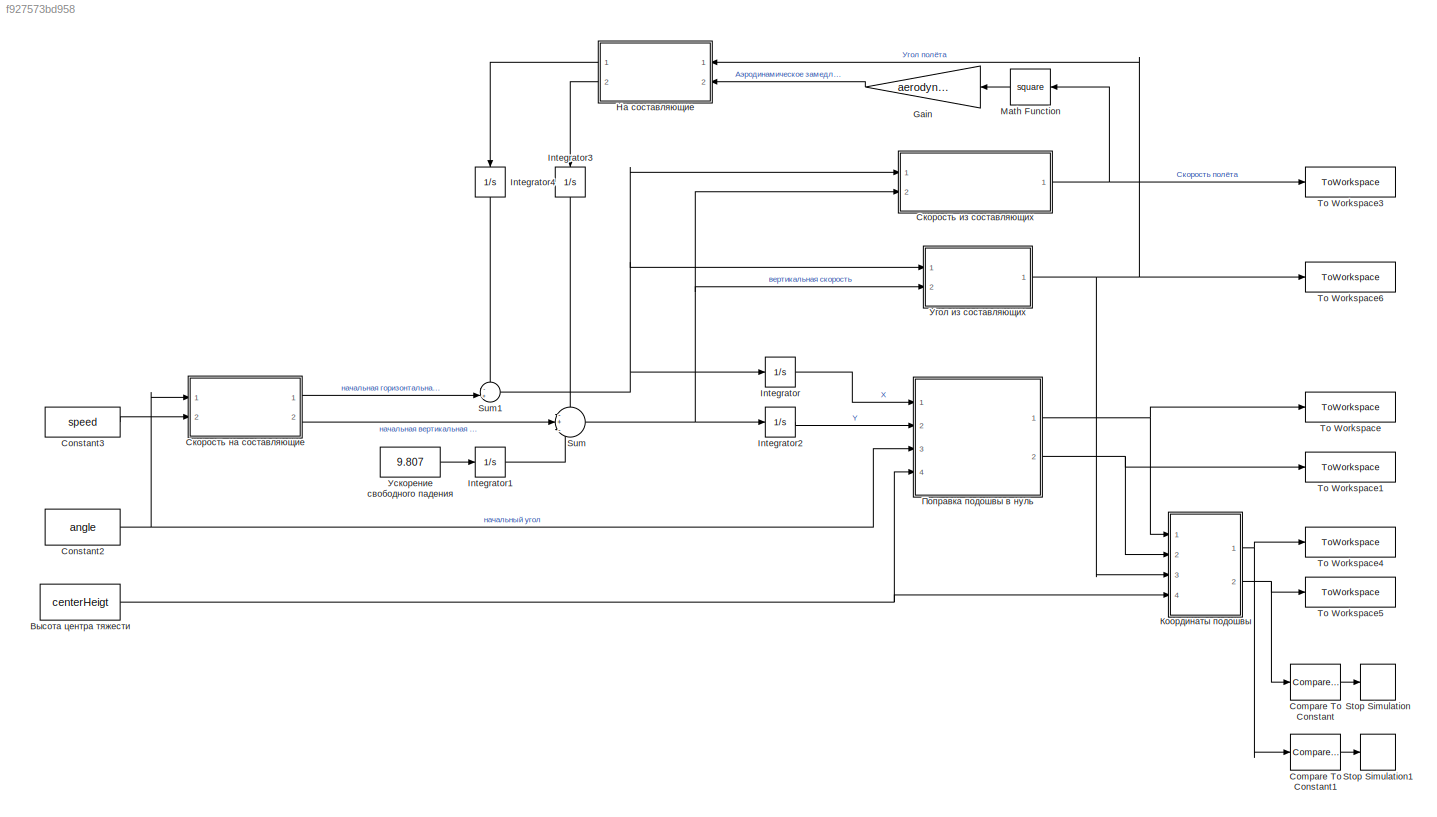
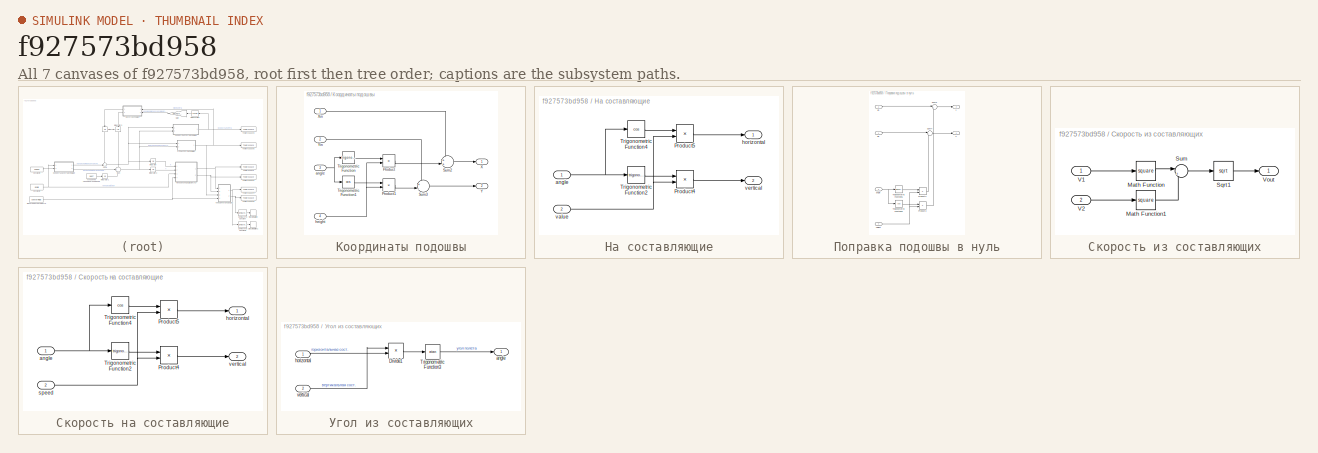
[diagram: thumbnail index - all 7 canvases of the model, root first then tree order]
MODEL slx_f927573bd958
KIND model
CONFIG AbsTol = auto
CONFIG EnableMultiTasking = off
CONFIG FixedStep = 0.01
CONFIG MaxStep = auto
CONFIG MinStep = auto
CONFIG RelTol = 1e-3
CONFIG SampleTimeConstraint = Unconstrained
CONFIG Solver = FixedStepAuto
CONFIG SolverName = FixedStepAuto
CONFIG StartTime = 0.0
CONFIG StopTime = 100.0
BLOCK [Reference] Compare To Constant  REF=simulink/Logic and Bit
Operations/Compare
To Constant
  Ports = [1, 1]
  SourceBlock = simulink/Logic and Bit\nOperations/Compare\nTo Constant
  SourceProductBaseCode = SL
  SourceProductName = Simulink
  SourceType = Compare To Constant
BLOCK [Reference] Compare To Constant1  REF=simulink/Logic and Bit
Operations/Compare
To Constant
  Ports = [1, 1]
  SourceBlock = simulink/Logic and Bit\nOperations/Compare\nTo Constant
  SourceProductBaseCode = SL
  SourceProductName = Simulink
  SourceType = Compare To Constant
BLOCK [Constant] Constant2
  Value = angle
BLOCK [Constant] Constant3
  Value = speed
BLOCK [Gain] Gain
  Gain = aerodynamic
  OutDataTypeStr = Inherit: Inherit via internal rule
  ParamDataTypeStr = Inherit: Inherit via internal rule
  SaturateOnIntegerOverflow = off
BLOCK [Integrator] Integrator
  Ports = [1, 1]
BLOCK [Integrator] Integrator1
  Ports = [1, 1]
BLOCK [Integrator] Integrator2
  Ports = [1, 1]
BLOCK [Integrator] Integrator3
  Ports = [1, 1]
BLOCK [Integrator] Integrator4
  Ports = [1, 1]
BLOCK [Math] Math Function
  Operator = square
  Ports = [1, 1]
  SignedPower = off
BLOCK [Stop] Stop Simulation
BLOCK [Stop] Stop Simulation1
BLOCK [Sum] Sum
  IconShape = round
  InputSameDT = off
  Inputs = -+-
  OutDataTypeStr = Inherit: Inherit via internal rule
  Ports = [3, 1]
  SaturateOnIntegerOverflow = off
BLOCK [Sum] Sum1
  IconShape = round
  InputSameDT = off
  Inputs = -+|
  OutDataTypeStr = Inherit: Inherit via internal rule
  Ports = [2, 1]
  SaturateOnIntegerOverflow = off
BLOCK [ToWorkspace] To Workspace
  FixptAsFi = on
  MaxDataPoints = inf
  Ports = [1]
  SampleTime = -1
  SaveFormat = Timeseries
  VariableName = X
BLOCK [ToWorkspace] To Workspace1
  FixptAsFi = on
  MaxDataPoints = inf
  Ports = [1]
  SampleTime = -1
  SaveFormat = Timeseries
  VariableName = Y
BLOCK [ToWorkspace] To Workspace3
  FixptAsFi = on
  MaxDataPoints = inf
  Ports = [1]
  SampleTime = -1
  SaveFormat = Timeseries
  VariableName = speed
BLOCK [ToWorkspace] To Workspace4
  FixptAsFi = on
  MaxDataPoints = inf
  Ports = [1]
  SampleTime = -1
  SaveFormat = Timeseries
  VariableName = realX
BLOCK [ToWorkspace] To Workspace5
  FixptAsFi = on
  MaxDataPoints = inf
  Ports = [1]
  SampleTime = -1
  SaveFormat = Timeseries
  VariableName = realY
BLOCK [ToWorkspace] To Workspace6
  FixptAsFi = on
  MaxDataPoints = inf
  Ports = [1]
  SampleTime = -1
  SaveFormat = Timeseries
  VariableName = angle
BLOCK [Constant] Высота центра тяжести 
  Value = centerHeigt
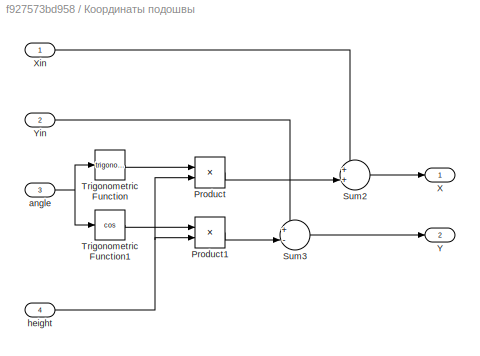
BLOCK [SubSystem] Координаты подошвы
  Ports = [4, 2]
  RequestExecContextInheritance = off
BLOCK [Product] Координаты подошвы/Product
  InputSameDT = off
  OutDataTypeStr = Inherit: Inherit via internal rule
  Ports = [2, 1]
  RndMeth = Floor
  SaturateOnIntegerOverflow = off
BLOCK [Product] Координаты подошвы/Product1
  InputSameDT = off
  OutDataTypeStr = Inherit: Inherit via internal rule
  Ports = [2, 1]
  RndMeth = Floor
  SaturateOnIntegerOverflow = off
BLOCK [Sum] Координаты подошвы/Sum2
  IconShape = round
  InputSameDT = off
  Inputs = ++|
  OutDataTypeStr = Inherit: Inherit via internal rule
  Ports = [2, 1]
  SaturateOnIntegerOverflow = off
BLOCK [Sum] Координаты подошвы/Sum3
  IconShape = round
  InputSameDT = off
  Inputs = +-|
  OutDataTypeStr = Inherit: Inherit via internal rule
  Ports = [2, 1]
  SaturateOnIntegerOverflow = off
BLOCK [Trigonometry] Координаты подошвы/Trigonometric Function
  Ports = [1, 1]
BLOCK [Trigonometry] Координаты подошвы/Trigonometric Function1
  Operator = cos
  Ports = [1, 1]
BLOCK [Outport] Координаты подошвы/X
  IconDisplay = Port number
BLOCK [Inport] Координаты подошвы/Xin
  IconDisplay = Port number
BLOCK [Outport] Координаты подошвы/Y
  IconDisplay = Port number
  Port = 2
BLOCK [Inport] Координаты подошвы/Yin
  IconDisplay = Port number
  Port = 2
BLOCK [Inport] Координаты подошвы/angle
  IconDisplay = Port number
  Port = 3
BLOCK [Inport] Координаты подошвы/height
  IconDisplay = Port number
  Port = 4
BLOCK [SubSystem] На составляющие
  Ports = [2, 2]
  RequestExecContextInheritance = off
BLOCK [Product] На составляющие/Product4
  InputSameDT = off
  OutDataTypeStr = Inherit: Inherit via internal rule
  Ports = [2, 1]
  RndMeth = Floor
  SaturateOnIntegerOverflow = off
BLOCK [Product] На составляющие/Product5
  InputSameDT = off
  OutDataTypeStr = Inherit: Inherit via internal rule
  Ports = [2, 1]
  RndMeth = Floor
  SaturateOnIntegerOverflow = off
BLOCK [Trigonometry] На составляющие/Trigonometric Function2
  Ports = [1, 1]
BLOCK [Trigonometry] На составляющие/Trigonometric Function4
  Operator = cos
  Ports = [1, 1]
BLOCK [Inport] На составляющие/angle
  IconDisplay = Port number
BLOCK [Outport] На составляющие/horizontal
  IconDisplay = Port number
BLOCK [Inport] На составляющие/value
  IconDisplay = Port number
  Port = 2
BLOCK [Outport] На составляющие/vertical
  IconDisplay = Port number
  Port = 2
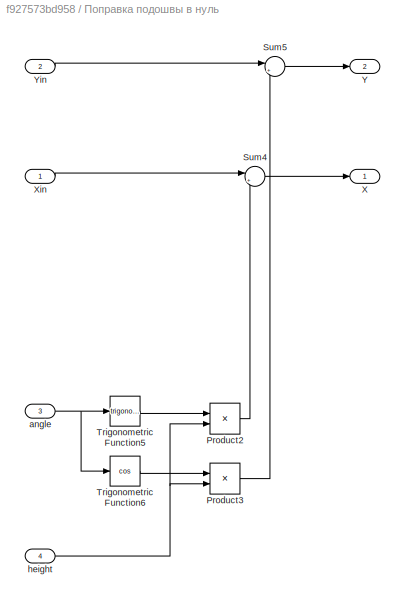
BLOCK [SubSystem] Поправка подошвы в нуль
  Ports = [4, 2]
  RequestExecContextInheritance = off
BLOCK [Product] Поправка подошвы в нуль/Product2
  InputSameDT = off
  OutDataTypeStr = Inherit: Inherit via internal rule
  Ports = [2, 1]
  RndMeth = Floor
  SaturateOnIntegerOverflow = off
BLOCK [Product] Поправка подошвы в нуль/Product3
  InputSameDT = off
  OutDataTypeStr = Inherit: Inherit via internal rule
  Ports = [2, 1]
  RndMeth = Floor
  SaturateOnIntegerOverflow = off
BLOCK [Sum] Поправка подошвы в нуль/Sum4
  IconShape = round
  InputSameDT = off
  Inputs = |+-
  OutDataTypeStr = Inherit: Inherit via internal rule
  Ports = [2, 1]
  SaturateOnIntegerOverflow = off
BLOCK [Sum] Поправка подошвы в нуль/Sum5
  IconShape = round
  InputSameDT = off
  Inputs = |++
  OutDataTypeStr = Inherit: Inherit via internal rule
  Ports = [2, 1]
  SaturateOnIntegerOverflow = off
BLOCK [Trigonometry] Поправка подошвы в нуль/Trigonometric Function5
  Ports = [1, 1]
BLOCK [Trigonometry] Поправка подошвы в нуль/Trigonometric Function6
  Operator = cos
  Ports = [1, 1]
BLOCK [Outport] Поправка подошвы в нуль/X
  IconDisplay = Port number
BLOCK [Inport] Поправка подошвы в нуль/Xin
  IconDisplay = Port number
BLOCK [Outport] Поправка подошвы в нуль/Y
  IconDisplay = Port number
  Port = 2
BLOCK [Inport] Поправка подошвы в нуль/Yin
  IconDisplay = Port number
  Port = 2
BLOCK [Inport] Поправка подошвы в нуль/angle
  IconDisplay = Port number
  Port = 3
BLOCK [Inport] Поправка подошвы в нуль/height
  IconDisplay = Port number
  Port = 4
BLOCK [SubSystem] Скорость из составляющих
  Ports = [2, 1]
  RequestExecContextInheritance = off
BLOCK [Math] Скорость из составляющих/Math Function
  Operator = square
  Ports = [1, 1]
  SignedPower = off
BLOCK [Math] Скорость из составляющих/Math Function1
  Operator = square
  Ports = [1, 1]
  SignedPower = off
BLOCK [Sqrt] Скорость из составляющих/Sqrt1
BLOCK [Sum] Скорость из составляющих/Sum
  IconShape = round
  InputSameDT = off
  Inputs = |++
  OutDataTypeStr = Inherit: Inherit via internal rule
  Ports = [2, 1]
  SaturateOnIntegerOverflow = off
BLOCK [Inport] Скорость из составляющих/V1
  IconDisplay = Port number
BLOCK [Inport] Скорость из составляющих/V2
  IconDisplay = Port number
  Port = 2
BLOCK [Outport] Скорость из составляющих/Vout
  IconDisplay = Port number
BLOCK [SubSystem] Скорость на составляющие
  Ports = [2, 2]
  RequestExecContextInheritance = off
BLOCK [Product] Скорость на составляющие/Product4
  InputSameDT = off
  OutDataTypeStr = Inherit: Inherit via internal rule
  Ports = [2, 1]
  RndMeth = Floor
  SaturateOnIntegerOverflow = off
BLOCK [Product] Скорость на составляющие/Product5
  InputSameDT = off
  OutDataTypeStr = Inherit: Inherit via internal rule
  Ports = [2, 1]
  RndMeth = Floor
  SaturateOnIntegerOverflow = off
BLOCK [Trigonometry] Скорость на составляющие/Trigonometric Function2
  Ports = [1, 1]
BLOCK [Trigonometry] Скорость на составляющие/Trigonometric Function4
  Operator = cos
  Ports = [1, 1]
BLOCK [Inport] Скорость на составляющие/angle
  IconDisplay = Port number
BLOCK [Outport] Скорость на составляющие/horizontal
  IconDisplay = Port number
BLOCK [Inport] Скорость на составляющие/speed
  IconDisplay = Port number
  Port = 2
BLOCK [Outport] Скорость на составляющие/vertical
  IconDisplay = Port number
  Port = 2
BLOCK [SubSystem] Угол из составляющих
  Ports = [2, 1]
  RequestExecContextInheritance = off
BLOCK [Product] Угол из составляющих/Divide1
  InputSameDT = off
  Inputs = */
  OutDataTypeStr = Inherit: Inherit via internal rule
  Ports = [2, 1]
  RndMeth = Floor
  SaturateOnIntegerOverflow = off
BLOCK [Trigonometry] Угол из составляющих/Trigonometric Function3
  Operator = atan
  Ports = [1, 1]
BLOCK [Outport] Угол из составляющих/angle
  IconDisplay = Port number
BLOCK [Inport] Угол из составляющих/horizontal
  IconDisplay = Port number
BLOCK [Inport] Угол из составляющих/vertical
  IconDisplay = Port number
  Port = 2
BLOCK [Constant] Ускорение свободного падения
  Value = 9.807
LINE Compare To Constant1:1 -> Stop Simulation1:1
LINE Compare To Constant:1 -> Stop Simulation:1
NET Constant2:1 -> Поправка подошвы в нуль:3, Скорость на составляющие:1
LINE Constant3:1 -> Скорость на составляющие:2
LINE Gain:1 -> На составляющие:2
LINE Integrator1:1 -> Sum:3
LINE Integrator2:1 -> Поправка подошвы в нуль:2
LINE Integrator3:1 -> Sum:1
LINE Integrator4:1 -> Sum1:1
LINE Integrator:1 -> Поправка подошвы в нуль:1
LINE Math Function:1 -> Gain:1
NET Sum1:1 -> Integrator:1, Скорость из составляющих:1, Угол из составляющих:1
NET Sum:1 -> Integrator2:1, Скорость из составляющих:2, Угол из составляющих:2
NET Высота центра тяжести :1 -> Координаты подошвы:4, Поправка подошвы в нуль:4
LINE Координаты подошвы/Product1:1 -> Координаты подошвы/Sum3:2
LINE Координаты подошвы/Product:1 -> Координаты подошвы/Sum2:2
LINE Координаты подошвы/Sum2:1 -> Координаты подошвы/X:1
LINE Координаты подошвы/Sum3:1 -> Координаты подошвы/Y:1
LINE Координаты подошвы/Trigonometric Function1:1 -> Координаты подошвы/Product1:1
LINE Координаты подошвы/Trigonometric Function:1 -> Координаты подошвы/Product:1
LINE Координаты подошвы/Xin:1 -> Координаты подошвы/Sum2:1
LINE Координаты подошвы/Yin:1 -> Координаты подошвы/Sum3:1
NET Координаты подошвы/angle:1 -> Координаты подошвы/Trigonometric Function1:1, Координаты подошвы/Trigonometric Function:1
NET Координаты подошвы/height:1 -> Координаты подошвы/Product1:2, Координаты подошвы/Product:2
NET Координаты подошвы:1 -> Compare To Constant1:1, To Workspace4:1
NET Координаты подошвы:2 -> Compare To Constant:1, To Workspace5:1
LINE На составляющие/Product4:1 -> На составляющие/vertical:1
LINE На составляющие/Product5:1 -> На составляющие/horizontal:1
LINE На составляющие/Trigonometric Function2:1 -> На составляющие/Product4:1
LINE На составляющие/Trigonometric Function4:1 -> На составляющие/Product5:1
NET На составляющие/angle:1 -> На составляющие/Trigonometric Function2:1, На составляющие/Trigonometric Function4:1
NET На составляющие/value:1 -> На составляющие/Product4:2, На составляющие/Product5:2
LINE На составляющие:1 -> Integrator4:1
LINE На составляющие:2 -> Integrator3:1
LINE Поправка подошвы в нуль/Product2:1 -> Поправка подошвы в нуль/Sum4:2
LINE Поправка подошвы в нуль/Product3:1 -> Поправка подошвы в нуль/Sum5:2
LINE Поправка подошвы в нуль/Sum4:1 -> Поправка подошвы в нуль/X:1
LINE Поправка подошвы в нуль/Sum5:1 -> Поправка подошвы в нуль/Y:1
LINE Поправка подошвы в нуль/Trigonometric Function5:1 -> Поправка подошвы в нуль/Product2:1
LINE Поправка подошвы в нуль/Trigonometric Function6:1 -> Поправка подошвы в нуль/Product3:1
LINE Поправка подошвы в нуль/Xin:1 -> Поправка подошвы в нуль/Sum4:1
LINE Поправка подошвы в нуль/Yin:1 -> Поправка подошвы в нуль/Sum5:1
NET Поправка подошвы в нуль/angle:1 -> Поправка подошвы в нуль/Trigonometric Function5:1, Поправка подошвы в нуль/Trigonometric Function6:1
NET Поправка подошвы в нуль/height:1 -> Поправка подошвы в нуль/Product2:2, Поправка подошвы в нуль/Product3:2
NET Поправка подошвы в нуль:1 -> To Workspace:1, Координаты подошвы:1
NET Поправка подошвы в нуль:2 -> To Workspace1:1, Координаты подошвы:2
LINE Скорость из составляющих/Math Function1:1 -> Скорость из составляющих/Sum:2
LINE Скорость из составляющих/Math Function:1 -> Скорость из составляющих/Sum:1
LINE Скорость из составляющих/Sqrt1:1 -> Скорость из составляющих/Vout:1
LINE Скорость из составляющих/Sum:1 -> Скорость из составляющих/Sqrt1:1
LINE Скорость из составляющих/V1:1 -> Скорость из составляющих/Math Function:1
LINE Скорость из составляющих/V2:1 -> Скорость из составляющих/Math Function1:1
NET Скорость из составляющих:1 -> Math Function:1, To Workspace3:1
LINE Скорость на составляющие/Product4:1 -> Скорость на составляющие/vertical:1
LINE Скорость на составляющие/Product5:1 -> Скорость на составляющие/horizontal:1
LINE Скорость на составляющие/Trigonometric Function2:1 -> Скорость на составляющие/Product4:1
LINE Скорость на составляющие/Trigonometric Function4:1 -> Скорость на составляющие/Product5:1
NET Скорость на составляющие/angle:1 -> Скорость на составляющие/Trigonometric Function2:1, Скорость на составляющие/Trigonometric Function4:1
NET Скорость на составляющие/speed:1 -> Скорость на составляющие/Product4:2, Скорость на составляющие/Product5:2
LINE Скорость на составляющие:1 -> Sum1:2
LINE Скорость на составляющие:2 -> Sum:2
LINE Угол из составляющих/Divide1:1 -> Угол из составляющих/Trigonometric Function3:1
LINE Угол из составляющих/Trigonometric Function3:1 -> Угол из составляющих/angle:1
LINE Угол из составляющих/horizontal:1 -> Угол из составляющих/Divide1:2
LINE Угол из составляющих/vertical:1 -> Угол из составляющих/Divide1:1
NET Угол из составляющих:1 -> To Workspace6:1, Координаты подошвы:3, На составляющие:1
LINE Ускорение свободного падения:1 -> Integrator1:1
note: NET lines group one-source signal fan-out (src -> all destinations, sorted); 1:1 wires keep LINE
